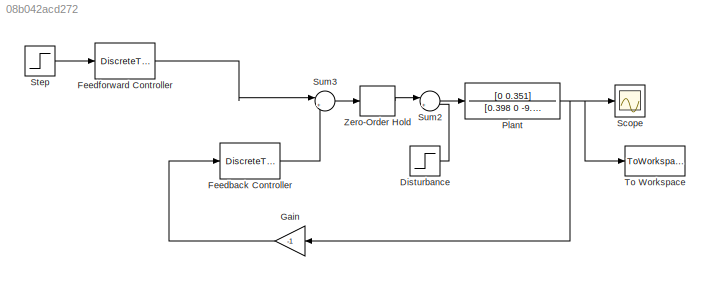
MODEL slx_08b042acd272
KIND model
CONFIG AbsTol = auto
CONFIG FixedStep = auto
CONFIG MaxStep = auto
CONFIG MinStep = auto
CONFIG RelTol = 1e-3
CONFIG SampleTimeConstraint = Unconstrained
CONFIG Solver = VariableStepAuto
CONFIG SolverMode = Auto
CONFIG SolverName = VariableStepAuto
CONFIG StartTime = 0.0
CONFIG StopTime = 50.0
BLOCK [Step] Disturbance
  After = 0.1
  SampleTime = 0
  Time = 0
BLOCK [DiscreteTransferFcn] Feedback Controller
  Denominator = [1 -1]
  InputPortMap = u0
  Numerator = [222 -722]
  Ports = [1, 1]
  SampleTime = 0.1
BLOCK [DiscreteTransferFcn] Feedforward Controller
  Denominator = [1 -1]
  InputPortMap = u0
  Numerator = [-2.8 ]
  Ports = [1, 1]
  SampleTime = 0.1
BLOCK [Gain] Gain
  Gain = -1
  OutDataTypeStr = Inherit: Inherit via internal rule
  ParamDataTypeStr = Inherit: Inherit via internal rule
  SaturateOnIntegerOverflow = off
BLOCK [TransferFcn] Plant
  Denominator = [0.398  0 -9.807]
  Numerator = [0 0.351]
BLOCK [Scope] Scope
  Ports = [1]
  ScopeSpecificationString = Simulink.scopes.TimeScopeBlockCfg('CurrentConfiguration', extmgr.ConfigurationSet(extmgr.Configuration('Core','General UI',true),extmgr.Configuration('Core','Source UI',true),extmgr.Configuration('Sources','WiredSimulink',true),extmgr.Configuration('Visuals','Time Domain',true,'SerializedDisplays',{struct('MinYLimReal','-131470391849516470000000000.00000','MaxYLimReal','381972447280266700000000000...<+1585ch>
BLOCK [Step] Step
  SampleTime = 0
  Time = 0
BLOCK [Sum] Sum2
  IconShape = round
  InputSameDT = off
  Inputs = |++
  OutDataTypeStr = Inherit: Inherit via internal rule
  Ports = [2, 1]
  SaturateOnIntegerOverflow = off
BLOCK [Sum] Sum3
  IconShape = round
  InputSameDT = off
  Inputs = |++
  OutDataTypeStr = Inherit: Inherit via internal rule
  Ports = [2, 1]
  SaturateOnIntegerOverflow = off
BLOCK [ToWorkspace] To Workspace
  FixptAsFi = on
  MaxDataPoints = inf
  Ports = [1]
  SampleTime = -1
  Save2DSignal = 3-D array (concatenate along third dimension)
  VariableName = output1
BLOCK [ZeroOrderHold] Zero-Order Hold
  SampleTime = 0.1
LINE Disturbance:1 -> Sum2:2
LINE Feedback Controller:1 -> Sum3:2
LINE Feedforward Controller:1 -> Sum3:1
LINE Gain:1 -> Feedback Controller:1
NET Plant:1 -> Gain:1, Scope:1, To Workspace:1
LINE Step:1 -> Feedforward Controller:1
LINE Sum2:1 -> Plant:1
LINE Sum3:1 -> Zero-Order Hold:1
LINE Zero-Order Hold:1 -> Sum2:1
note: NET lines group one-source signal fan-out (src -> all destinations, sorted); 1:1 wires keep LINE
